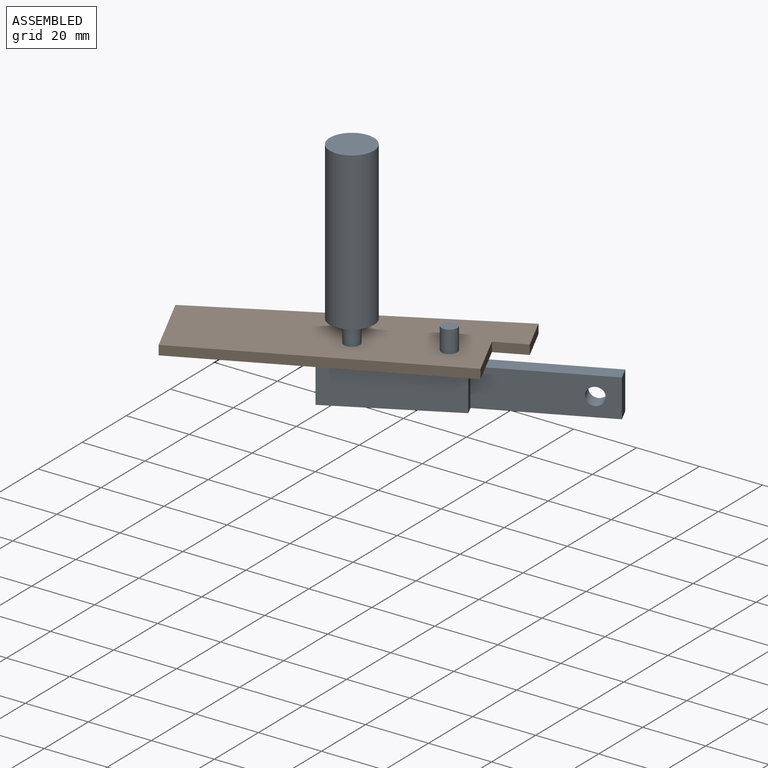
[diagram: assembled view]
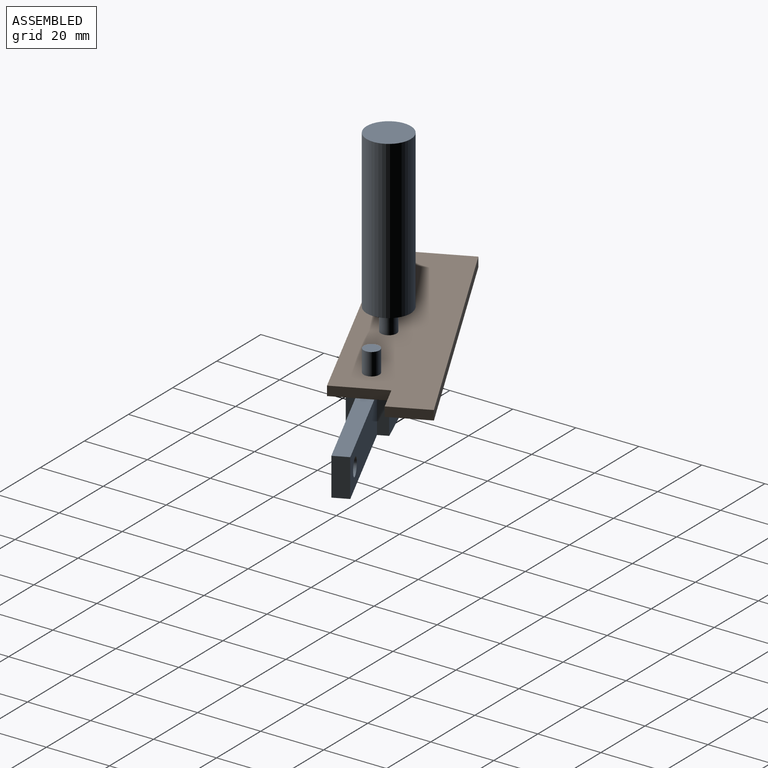
[diagram: assembled view, second angle]
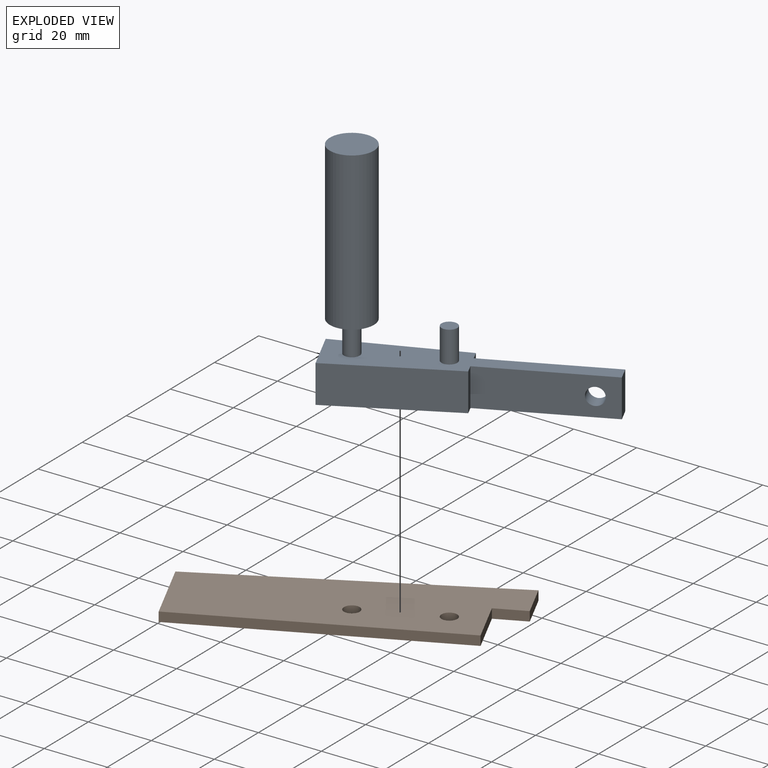
[diagram: exploded view]
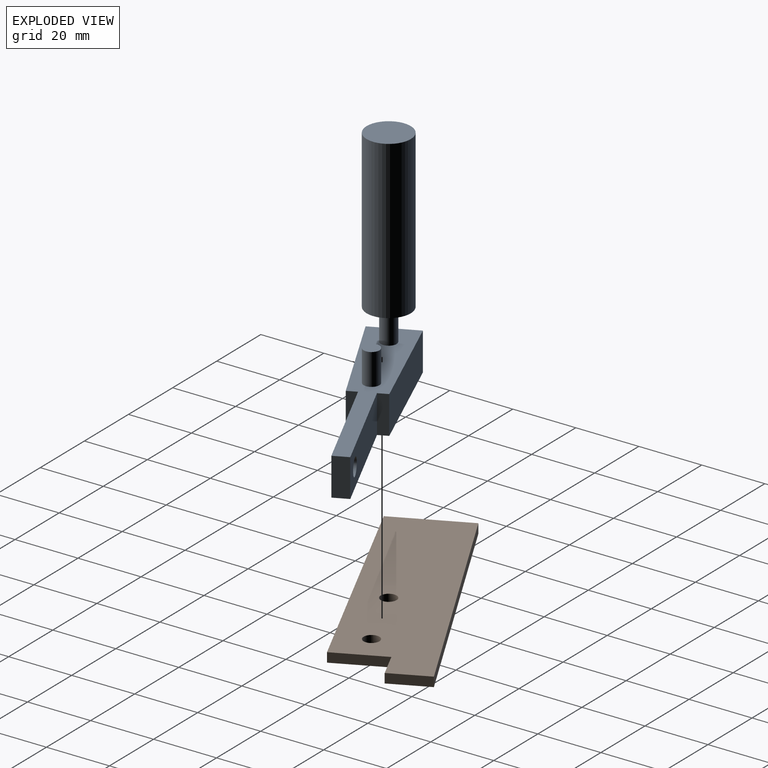
[diagram: exploded view, second angle]
ASSEMBLY  parts=2 mates=2
PART A: 17 faces, bbox 15.2x80x72 mm
  f0: plane 40x12mm, normal (-1,-0.05,0), area 480.5mm2, adj f1,f7,f8,f9
  f1: plane 12x3.25mm, normal (0,-1,0), area 39mm2, adj f0,f2,f8,f9
  f2: plane 40x12mm, normal (-1,0,0), area 456.2mm2, adj f1,f3,f8,f9,f10
  f3: plane 12x5mm, normal (0,-1,0), area 60mm2, adj f2,f4,f8,f9
  f4: plane 40x12mm, normal (1,0,0), area 456.2mm2, adj f3,f5,f8,f9,f10
  f5: plane 12x3.25mm, normal (0,-1,0), area 39mm2, adj f4,f6,f8,f9
  f6: plane 40x12mm, normal (1,-0.05,0), area 480.5mm2, adj f5,f7,f8,f9
  f7: plane 15.15x12mm, normal (0,1,0), area 181.8mm2, adj f0,f6,f8,f9
  f8: plane 80x15.15mm, normal (0,0,1), area 733mm2, adj f0,f1,f2,f3,f4,f5,f6,f7
  f9: plane 80x15.15mm, normal (0,0,-1), area 693.7mm2, adj f0,f1,f2,f3,f4,f5,f6,f7
  f10: cylinder r=2.75mm len=5.5mm, axis (-1,0,0), area 86.4mm2, adj f2,f4
  f11: cylinder r=2.5mm len=10mm, axis (0,0,1), area 157.1mm2, adj f9,f16
  f12: cylinder r=2.5mm len=10mm, axis (0,0,1), area 157.1mm2, adj f9,f13
  f13: plane 5x5mm, normal (0,0,-1), area 19.6mm2, adj f12
  f14: cylinder r=7mm len=50mm, axis (0,0,1), area 2199.1mm2, adj f15,f16
  f15: plane 14x14mm, normal (0,0,-1), area 153.9mm2, adj f14
  f16: plane 14x14mm, normal (0,0,1), area 134.3mm2, adj f11,f14
PART B: 10 faces, bbox 30x95x3 mm
  f0: plane 10x3mm, normal (-1,0,0), area 30mm2, adj f1,f6,f8,f9
  f1: plane 17x3mm, normal (0,-1,0), area 51mm2, adj f0,f2,f8,f9
  f2: plane 85x3mm, normal (-1,0,0), area 255mm2, adj f1,f3,f8,f9
  f3: plane 25x3mm, normal (0,1,0), area 75mm2, adj f2,f4,f8,f9
  f4: plane 95x5mm, normal (1,0.05,0), area 285.4mm2, adj f3,f6,f8,f9
  f5: cylinder r=2.5mm len=5mm, axis (0,0,1), area 47.1mm2, adj f8,f9
  f6: plane 13x3mm, normal (0,-1,0), area 39mm2, adj f0,f4,f8,f9
  f7: cylinder r=2.5mm len=5mm, axis (0,0,1), area 47.1mm2, adj f8,f9
  f8: plane 95x30mm, normal (0,0,-1), area 2403.2mm2, adj f0,f1,f2,f3,f4,f5,f6,f7
  f9: plane 95x30mm, normal (0,0,1), area 2403.2mm2, adj f0,f1,f2,f3,f4,f5,f6,f7
PLACE A rot(axis=(0.84,-0.54,0),180deg) t=(26.92,99.3,15.79)mm
PLACE B rot(axis=(0,0,1),115deg) t=(29.03,94.77,18.79)mm
MATE planar B.f5 <-> A.f12  axis (0,0,-1) through (-13.72,77.6,15.79)mm
MATE planar B.f7 <-> A.f11  axis (0,0,-1) through (-37.06,66.71,15.79)mm
